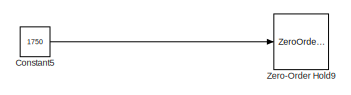
[diagram: root canvas - part 1/6, top left region]
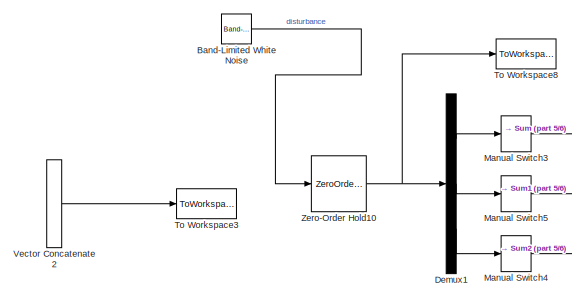
[diagram: root canvas - part 2/6, middle left region]
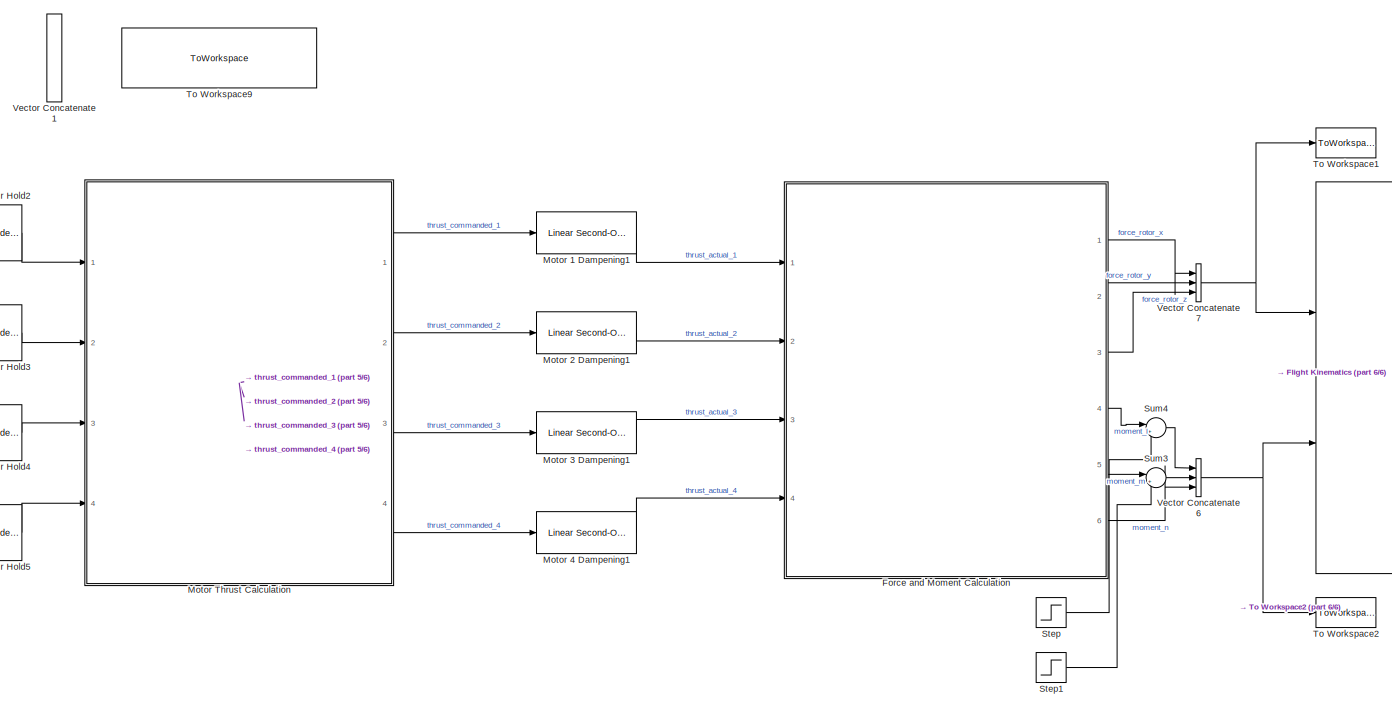
[diagram: root canvas - part 3/6, central region]
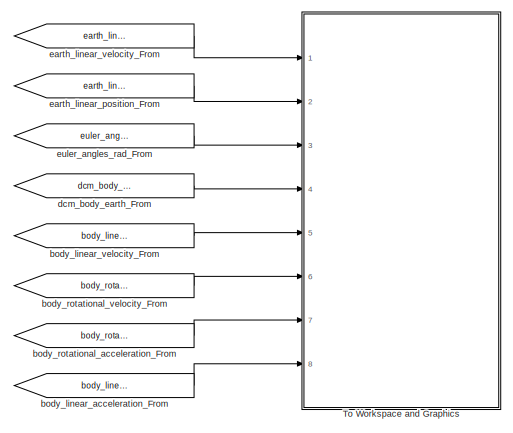
[diagram: root canvas - part 4/6, bottom right region]
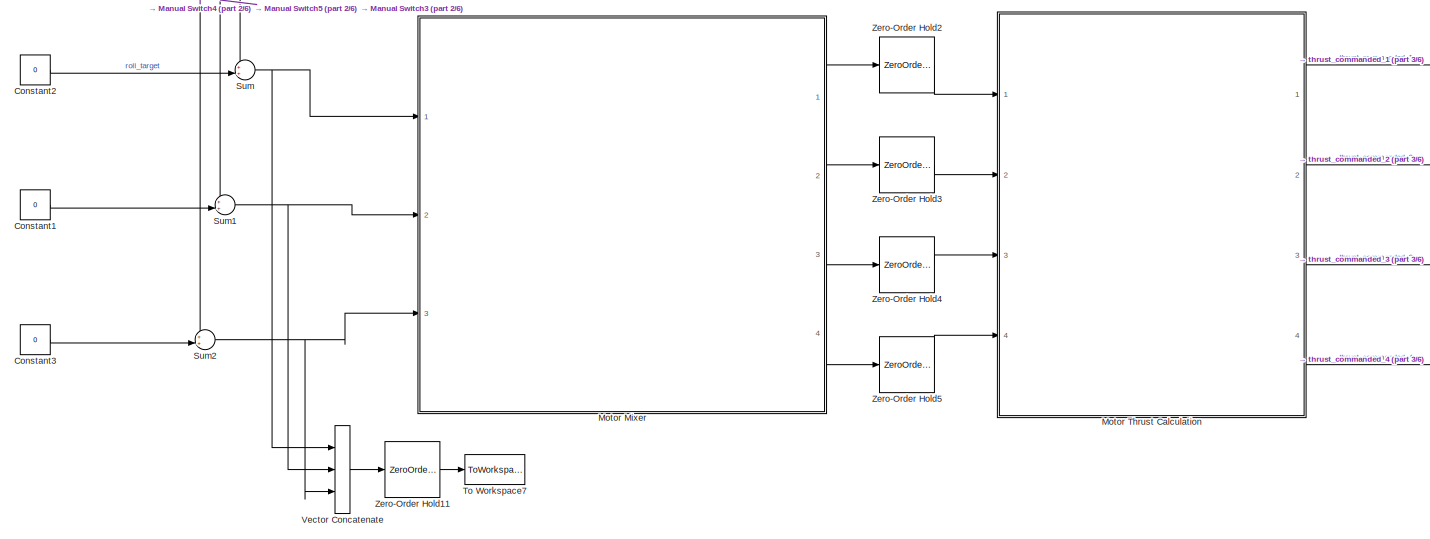
[diagram: root canvas - part 5/6, bottom center region]
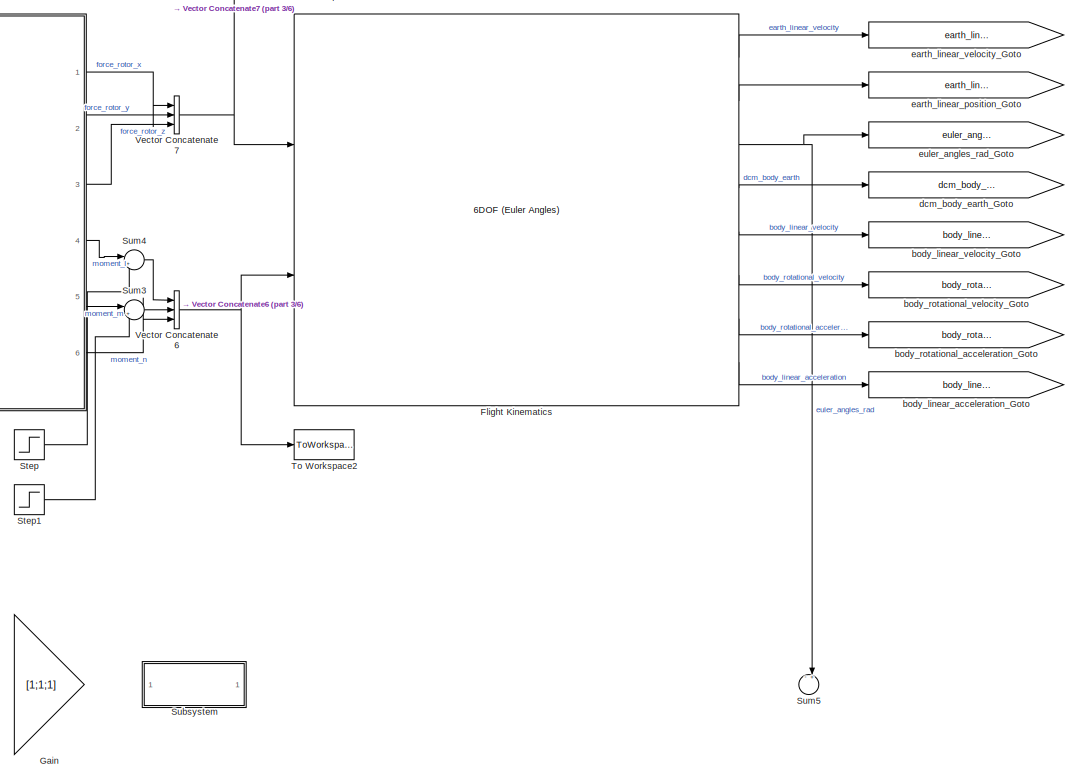
[diagram: root canvas - part 6/6, bottom right region]
MODEL slx_2ea5f88f0110
KIND model
CONFIG AbsTol = auto
CONFIG FixedStep = Ts
CONFIG MaxStep = auto
CONFIG MinStep = auto
CONFIG RelTol = 1e-3
CONFIG SampleTimeConstraint = Unconstrained
CONFIG Solver = VariableStepAuto
CONFIG SolverMode = Auto
CONFIG SolverName = VariableStepAuto
CONFIG StartTime = 0.0
CONFIG StopTime = 20
WORKSPACE source: MAT-file member
WORKSPACE MCOS: class17 (value not decoded)
BLOCK [Reference] Band-Limited White Noise  REF=simulink/Sources/Band-Limited
White Noise
  Ports = [0, 1]
  SourceBlock = simulink/Sources/Band-Limited\nWhite Noise
  SourceType = Band-Limited White Noise.
BLOCK [Constant] Constant1
  SampleTime = Ts
  Value = 0
BLOCK [Constant] Constant2
  SampleTime = Ts
  Value = 0
BLOCK [Constant] Constant3
  SampleTime = Ts
  Value = 0
BLOCK [Constant] Constant5
  SampleTime = Ts
  Value = 1750
BLOCK [Demux] Demux1
  DisplayOption = bar
  Outputs = 3
  Ports = [1, 3]
BLOCK [Reference] Flight Kinematics  REF=aerolib6dof2/6DOF (Euler Angles)
  Ports = [2, 8]
  SourceBlock = aerolib6dof2/6DOF (Euler Angles)
  SourceType = 6DOF EoM (Body Axis)
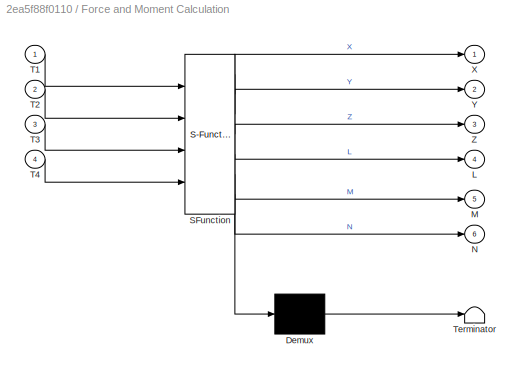
BLOCK [SubSystem] Force and Moment Calculation
  ErrorFcn = Stateflow.Translate.translate
  PermitHierarchicalResolution = ExplicitOnly
  Ports = [4, 6]
  RequestExecContextInheritance = off
  SFBlockType = MATLAB Function
  TreatAsAtomicUnit = on
  Variant = off
BLOCK [Demux] Force and Moment Calculation/ Demux 
  Outputs = 1
  Ports = [1, 1]
BLOCK [S-Function] Force and Moment Calculation/ SFunction 
  EnableBusSupport = on
  FunctionName = sf_sfun
  PortCounts = [4 7]
  Ports = [4, 7]
  SFunctionDeploymentMode = off
  Tag = Stateflow S-Function DOBC_plant 6
BLOCK [Terminator] Force and Moment Calculation/ Terminator 
BLOCK [Outport] Force and Moment Calculation/L
  IconDisplay = Port number
  Port = 4
BLOCK [Outport] Force and Moment Calculation/M
  IconDisplay = Port number
  Port = 5
BLOCK [Outport] Force and Moment Calculation/N
  IconDisplay = Port number
  Port = 6
BLOCK [Inport] Force and Moment Calculation/T1
  IconDisplay = Port number
BLOCK [Inport] Force and Moment Calculation/T2
  IconDisplay = Port number
  Port = 2
BLOCK [Inport] Force and Moment Calculation/T3
  IconDisplay = Port number
  Port = 3
BLOCK [Inport] Force and Moment Calculation/T4
  IconDisplay = Port number
  Port = 4
BLOCK [Outport] Force and Moment Calculation/X
  IconDisplay = Port number
BLOCK [Outport] Force and Moment Calculation/Y
  IconDisplay = Port number
  Port = 2
BLOCK [Outport] Force and Moment Calculation/Z
  IconDisplay = Port number
  Port = 3
BLOCK [Gain] Gain
  Gain = [1;1;1]
  OutDataTypeStr = Inherit: Inherit via internal rule
  ParamDataTypeStr = Inherit: Inherit via internal rule
  SaturateOnIntegerOverflow = off
BLOCK [ManualSwitch] Manual Switch3
  CurrentSetting = 0
BLOCK [ManualSwitch] Manual Switch4
  CurrentSetting = 0
BLOCK [ManualSwitch] Manual Switch5
  CurrentSetting = 0
BLOCK [Reference] Motor 1 Dampening1  REF=aerolibactuator/Linear Second-Order Actuator
  Ports = [1, 1]
  SourceBlock = aerolibactuator/Linear Second-Order Actuator
  SourceType = LinearSecondOrderActuator
BLOCK [Reference] Motor 2 Dampening1  REF=aerolibactuator/Linear Second-Order Actuator
  Ports = [1, 1]
  SourceBlock = aerolibactuator/Linear Second-Order Actuator
  SourceType = LinearSecondOrderActuator
BLOCK [Reference] Motor 3 Dampening1  REF=aerolibactuator/Linear Second-Order Actuator
  Ports = [1, 1]
  SourceBlock = aerolibactuator/Linear Second-Order Actuator
  SourceType = LinearSecondOrderActuator
BLOCK [Reference] Motor 4 Dampening1  REF=aerolibactuator/Linear Second-Order Actuator
  Ports = [1, 1]
  SourceBlock = aerolibactuator/Linear Second-Order Actuator
  SourceType = LinearSecondOrderActuator
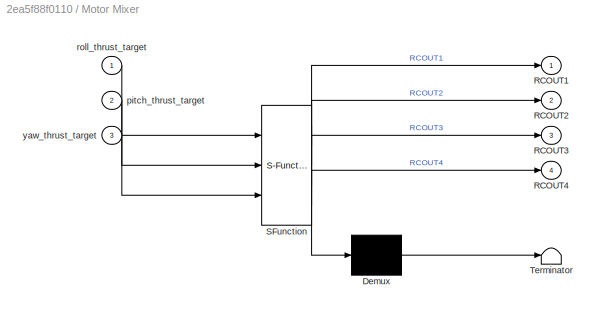
BLOCK [SubSystem] Motor Mixer
  ErrorFcn = Stateflow.Translate.translate
  PermitHierarchicalResolution = ExplicitOnly
  Ports = [3, 4]
  RequestExecContextInheritance = off
  SFBlockType = MATLAB Function
  TreatAsAtomicUnit = on
  Variant = off
BLOCK [Demux] Motor Mixer/ Demux 
  Outputs = 1
  Ports = [1, 1]
BLOCK [S-Function] Motor Mixer/ SFunction 
  EnableBusSupport = on
  FunctionName = sf_sfun
  PortCounts = [3 5]
  Ports = [3, 5]
  SFunctionDeploymentMode = off
  Tag = Stateflow S-Function DOBC_plant 5
BLOCK [Terminator] Motor Mixer/ Terminator 
BLOCK [Outport] Motor Mixer/RCOUT1
  IconDisplay = Port number
BLOCK [Outport] Motor Mixer/RCOUT2
  IconDisplay = Port number
  Port = 2
BLOCK [Outport] Motor Mixer/RCOUT3
  IconDisplay = Port number
  Port = 3
BLOCK [Outport] Motor Mixer/RCOUT4
  IconDisplay = Port number
  Port = 4
BLOCK [Inport] Motor Mixer/pitch_thrust_target
  IconDisplay = Port number
  Port = 2
BLOCK [Inport] Motor Mixer/roll_thrust_target
  IconDisplay = Port number
BLOCK [Inport] Motor Mixer/yaw_thrust_target
  IconDisplay = Port number
  Port = 3
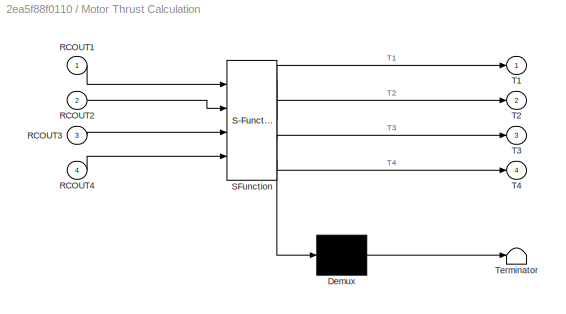
BLOCK [SubSystem] Motor Thrust Calculation 
  ErrorFcn = Stateflow.Translate.translate
  PermitHierarchicalResolution = ExplicitOnly
  Ports = [4, 4]
  RequestExecContextInheritance = off
  SFBlockType = MATLAB Function
  TreatAsAtomicUnit = on
  Variant = off
BLOCK [Demux] Motor Thrust Calculation / Demux 
  Outputs = 1
  Ports = [1, 1]
BLOCK [S-Function] Motor Thrust Calculation / SFunction 
  EnableBusSupport = on
  FunctionName = sf_sfun
  PortCounts = [4 5]
  Ports = [4, 5]
  SFunctionDeploymentMode = off
  Tag = Stateflow S-Function DOBC_plant 8
BLOCK [Terminator] Motor Thrust Calculation / Terminator 
BLOCK [Inport] Motor Thrust Calculation /RCOUT1
  IconDisplay = Port number
BLOCK [Inport] Motor Thrust Calculation /RCOUT2
  IconDisplay = Port number
  Port = 2
BLOCK [Inport] Motor Thrust Calculation /RCOUT3
  IconDisplay = Port number
  Port = 3
BLOCK [Inport] Motor Thrust Calculation /RCOUT4
  IconDisplay = Port number
  Port = 4
BLOCK [Outport] Motor Thrust Calculation /T1
  IconDisplay = Port number
BLOCK [Outport] Motor Thrust Calculation /T2
  IconDisplay = Port number
  Port = 2
BLOCK [Outport] Motor Thrust Calculation /T3
  IconDisplay = Port number
  Port = 3
BLOCK [Outport] Motor Thrust Calculation /T4
  IconDisplay = Port number
  Port = 4
BLOCK [Step] Step
  After = -0.0035
  SampleTime = 0
  Time = 5
BLOCK [Step] Step1
  After = 0.0059
  SampleTime = 0
  Time = 5
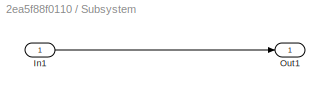
BLOCK [SubSystem] Subsystem
  Ports = [1, 1]
  RequestExecContextInheritance = off
  Variant = off
BLOCK [Inport] Subsystem/In1
  IconDisplay = Port number
BLOCK [Outport] Subsystem/Out1
  IconDisplay = Port number
BLOCK [Sum] Sum
  IconShape = round
  InputSameDT = off
  Inputs = ++|
  OutDataTypeStr = Inherit: Inherit via internal rule
  Ports = [2, 1]
  SaturateOnIntegerOverflow = off
BLOCK [Sum] Sum1
  IconShape = round
  InputSameDT = off
  Inputs = ++|
  OutDataTypeStr = Inherit: Inherit via internal rule
  Ports = [2, 1]
  SaturateOnIntegerOverflow = off
BLOCK [Sum] Sum2
  IconShape = round
  InputSameDT = off
  Inputs = ++|
  OutDataTypeStr = Inherit: Inherit via internal rule
  Ports = [2, 1]
  SaturateOnIntegerOverflow = off
BLOCK [Sum] Sum3
  IconShape = round
  InputSameDT = off
  Inputs = |++
  OutDataTypeStr = Inherit: Inherit via internal rule
  Ports = [2, 1]
  SaturateOnIntegerOverflow = off
BLOCK [Sum] Sum4
  IconShape = round
  InputSameDT = off
  Inputs = |++
  OutDataTypeStr = Inherit: Inherit via internal rule
  Ports = [2, 1]
  SaturateOnIntegerOverflow = off
BLOCK [Sum] Sum5
  IconShape = round
  InputSameDT = off
  Inputs = -+|
  OutDataTypeStr = Inherit: Inherit via internal rule
  Ports = [2, 1]
  SaturateOnIntegerOverflow = off
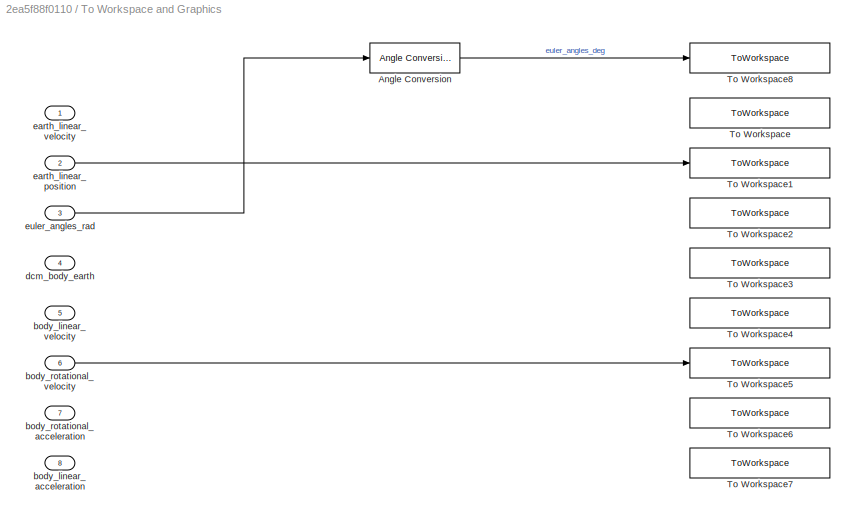
BLOCK [SubSystem] To Workspace and Graphics
  Ports = [8]
  RequestExecContextInheritance = off
  Variant = off
BLOCK [Reference] To Workspace and Graphics/Angle Conversion  REF=aerolibconvert2/Angle Conversion
  Ports = [1, 1]
  SourceBlock = aerolibconvert2/Angle Conversion
  SourceType = Angle Conversion
BLOCK [ToWorkspace] To Workspace and Graphics/To Workspace
  FixptAsFi = on
  MaxDataPoints = inf
  Ports = [1]
  SampleTime = -1
  Save2DSignal = 3-D array (concatenate along third dimension)
  VariableName = earth_linear_velocity
BLOCK [ToWorkspace] To Workspace and Graphics/To Workspace1
  FixptAsFi = on
  MaxDataPoints = inf
  Ports = [1]
  SampleTime = -1
  Save2DSignal = 3-D array (concatenate along third dimension)
  VariableName = earth_linear_position
BLOCK [ToWorkspace] To Workspace and Graphics/To Workspace2
  FixptAsFi = on
  MaxDataPoints = inf
  Ports = [1]
  SampleTime = -1
  Save2DSignal = 3-D array (concatenate along third dimension)
  VariableName = euler_angles_rad
BLOCK [ToWorkspace] To Workspace and Graphics/To Workspace3
  FixptAsFi = on
  MaxDataPoints = inf
  Ports = [1]
  SampleTime = -1
  Save2DSignal = 3-D array (concatenate along third dimension)
  VariableName = dcm_body_earth
BLOCK [ToWorkspace] To Workspace and Graphics/To Workspace4
  FixptAsFi = on
  MaxDataPoints = inf
  Ports = [1]
  SampleTime = -1
  Save2DSignal = 3-D array (concatenate along third dimension)
  VariableName = body_linear_velocity
BLOCK [ToWorkspace] To Workspace and Graphics/To Workspace5
  FixptAsFi = on
  MaxDataPoints = inf
  Ports = [1]
  SampleTime = -1
  Save2DSignal = 3-D array (concatenate along third dimension)
  VariableName = body_rotational_velocity
BLOCK [ToWorkspace] To Workspace and Graphics/To Workspace6
  FixptAsFi = on
  MaxDataPoints = inf
  Ports = [1]
  SampleTime = -1
  Save2DSignal = 3-D array (concatenate along third dimension)
  VariableName = body_rotational_acceleration
BLOCK [ToWorkspace] To Workspace and Graphics/To Workspace7
  FixptAsFi = on
  MaxDataPoints = inf
  Ports = [1]
  SampleTime = -1
  Save2DSignal = 3-D array (concatenate along third dimension)
  VariableName = body_linear_acceleration
BLOCK [ToWorkspace] To Workspace and Graphics/To Workspace8
  FixptAsFi = on
  MaxDataPoints = inf
  Ports = [1]
  SampleTime = -1
  Save2DSignal = 3-D array (concatenate along third dimension)
  VariableName = euler_angles_deg
BLOCK [Inport] To Workspace and Graphics/body_linear_acceleration
  IconDisplay = Port number
  Port = 8
BLOCK [Inport] To Workspace and Graphics/body_linear_velocity
  IconDisplay = Port number
  Port = 5
BLOCK [Inport] To Workspace and Graphics/body_rotational_acceleration
  IconDisplay = Port number
  Port = 7
BLOCK [Inport] To Workspace and Graphics/body_rotational_velocity
  IconDisplay = Port number
  Port = 6
BLOCK [Inport] To Workspace and Graphics/dcm_body_earth
  IconDisplay = Port number
  Port = 4
BLOCK [Inport] To Workspace and Graphics/earth_linear_position
  IconDisplay = Port number
  Port = 2
BLOCK [Inport] To Workspace and Graphics/earth_linear_velocity
  IconDisplay = Port number
BLOCK [Inport] To Workspace and Graphics/euler_angles_rad
  IconDisplay = Port number
  Port = 3
BLOCK [ToWorkspace] To Workspace1
  FixptAsFi = on
  MaxDataPoints = inf
  Ports = [1]
  SampleTime = -1
  Save2DSignal = 3-D array (concatenate along third dimension)
  VariableName = force
BLOCK [ToWorkspace] To Workspace2
  FixptAsFi = on
  MaxDataPoints = inf
  Ports = [1]
  SampleTime = -1
  Save2DSignal = 3-D array (concatenate along third dimension)
  VariableName = moment
BLOCK [ToWorkspace] To Workspace3
  FixptAsFi = on
  MaxDataPoints = inf
  Ports = [1]
  SampleTime = -1
  Save2DSignal = 3-D array (concatenate along third dimension)
  VariableName = rate_target
BLOCK [ToWorkspace] To Workspace7
  FixptAsFi = on
  MaxDataPoints = inf
  Ports = [1]
  SampleTime = -1
  Save2DSignal = 3-D array (concatenate along third dimension)
  VariableName = u
BLOCK [ToWorkspace] To Workspace8
  FixptAsFi = on
  MaxDataPoints = inf
  Ports = [1]
  SampleTime = -1
  Save2DSignal = 3-D array (concatenate along third dimension)
  VariableName = d
BLOCK [ToWorkspace] To Workspace9
  FixptAsFi = on
  MaxDataPoints = inf
  Ports = [1]
  SampleTime = -1
  Save2DSignal = 3-D array (concatenate along third dimension)
  VariableName = RCOUT_limit_check
BLOCK [Concatenate] Vector Concatenate
  NumInputs = 3
  Ports = [3, 1]
BLOCK [Concatenate] Vector Concatenate1
  NumInputs = 4
  Ports = [4, 1]
BLOCK [Concatenate] Vector Concatenate2
  NumInputs = 3
  Ports = [3, 1]
BLOCK [Concatenate] Vector Concatenate6
  NumInputs = 3
  Ports = [3, 1]
BLOCK [Concatenate] Vector Concatenate7
  NumInputs = 3
  Ports = [3, 1]
BLOCK [ZeroOrderHold] Zero-Order Hold10
  SampleTime = dtzoh
BLOCK [ZeroOrderHold] Zero-Order Hold11
  SampleTime = dtzoh
BLOCK [ZeroOrderHold] Zero-Order Hold2
  SampleTime = dtzoh
BLOCK [ZeroOrderHold] Zero-Order Hold3
  SampleTime = dtzoh
BLOCK [ZeroOrderHold] Zero-Order Hold4
  SampleTime = dtzoh
BLOCK [ZeroOrderHold] Zero-Order Hold5
  SampleTime = dtzoh
BLOCK [ZeroOrderHold] Zero-Order Hold9
  SampleTime = dtzoh
BLOCK [From] body_linear_acceleration_From
  GotoTag = body_linear_acceleration
  TagVisibility = global
BLOCK [Goto] body_linear_acceleration_Goto
  GotoTag = body_linear_acceleration
  TagVisibility = global
BLOCK [From] body_linear_velocity_From
  GotoTag = body_linear_velocity
  TagVisibility = global
BLOCK [Goto] body_linear_velocity_Goto
  GotoTag = body_linear_velocity
  TagVisibility = global
BLOCK [From] body_rotational_acceleration_From
  GotoTag = body_rotational_acceleration
  TagVisibility = global
BLOCK [Goto] body_rotational_acceleration_Goto
  GotoTag = body_rotational_acceleration
  TagVisibility = global
BLOCK [From] body_rotational_velocity_From
  GotoTag = body_rotational_velocity
  TagVisibility = global
BLOCK [Goto] body_rotational_velocity_Goto
  GotoTag = body_rotational_velocity
  TagVisibility = global
BLOCK [From] dcm_body_earth_From
  GotoTag = dcm_body_earth
  TagVisibility = global
BLOCK [Goto] dcm_body_earth_Goto
  GotoTag = dcm_body_earth
  TagVisibility = global
BLOCK [From] earth_linear_position_From
  GotoTag = earth_linear_position
  TagVisibility = global
BLOCK [Goto] earth_linear_position_Goto
  GotoTag = earth_linear_position
  TagVisibility = global
BLOCK [From] earth_linear_velocity_From
  GotoTag = earth_linear_velocity
  TagVisibility = global
BLOCK [Goto] earth_linear_velocity_Goto
  GotoTag = earth_linear_velocity
  TagVisibility = global
BLOCK [From] euler_angles_rad_From
  GotoTag = euler_angles_rad
  TagVisibility = global
BLOCK [Goto] euler_angles_rad_Goto
  GotoTag = euler_angles_rad
  TagVisibility = global
LINE Band-Limited White Noise:1 -> Zero-Order Hold10:1
LINE Constant1:1 -> Sum1:2
LINE Constant2:1 -> Sum:2
LINE Constant3:1 -> Sum2:2
LINE Constant5:1 -> Zero-Order Hold9:1
LINE Demux1:1 -> Manual Switch3:1
LINE Demux1:2 -> Manual Switch5:1
LINE Demux1:3 -> Manual Switch4:1
LINE Flight Kinematics:1 -> earth_linear_velocity_Goto:1
LINE Flight Kinematics:2 -> earth_linear_position_Goto:1
NET Flight Kinematics:3 -> Sum5:2, euler_angles_rad_Goto:1
LINE Flight Kinematics:4 -> dcm_body_earth_Goto:1
LINE Flight Kinematics:5 -> body_linear_velocity_Goto:1
LINE Flight Kinematics:6 -> body_rotational_velocity_Goto:1
LINE Flight Kinematics:7 -> body_rotational_acceleration_Goto:1
LINE Flight Kinematics:8 -> body_linear_acceleration_Goto:1
LINE Force and Moment Calculation:1 -> Vector Concatenate7:1
LINE Force and Moment Calculation:2 -> Vector Concatenate7:2
LINE Force and Moment Calculation:3 -> Vector Concatenate7:3
LINE Force and Moment Calculation:4 -> Sum4:1
LINE Force and Moment Calculation:5 -> Sum3:1
LINE Force and Moment Calculation:6 -> Vector Concatenate6:3
LINE Manual Switch3:1 -> Sum:1
LINE Manual Switch4:1 -> Sum2:1
LINE Manual Switch5:1 -> Sum1:1
LINE Motor 1 Dampening1:1 -> Force and Moment Calculation:1
LINE Motor 2 Dampening1:1 -> Force and Moment Calculation:2
LINE Motor 3 Dampening1:1 -> Force and Moment Calculation:3
LINE Motor 4 Dampening1:1 -> Force and Moment Calculation:4
LINE Motor Mixer:1 -> Zero-Order Hold2:1
LINE Motor Mixer:2 -> Zero-Order Hold3:1
LINE Motor Mixer:3 -> Zero-Order Hold4:1
LINE Motor Mixer:4 -> Zero-Order Hold5:1
LINE Motor Thrust Calculation :1 -> Motor 1 Dampening1:1
LINE Motor Thrust Calculation :2 -> Motor 2 Dampening1:1
LINE Motor Thrust Calculation :3 -> Motor 3 Dampening1:1
LINE Motor Thrust Calculation :4 -> Motor 4 Dampening1:1
LINE Step1:1 -> Sum3:2
LINE Step:1 -> Sum4:2
LINE Subsystem/In1:1 -> Subsystem/Out1:1
NET Sum1:1 -> Motor Mixer:2, Vector Concatenate:2
NET Sum2:1 -> Motor Mixer:3, Vector Concatenate:3
LINE Sum3:1 -> Vector Concatenate6:2
LINE Sum4:1 -> Vector Concatenate6:1
NET Sum:1 -> Motor Mixer:1, Vector Concatenate:1
LINE To Workspace and Graphics/Angle Conversion:1 -> To Workspace and Graphics/To Workspace8:1
LINE To Workspace and Graphics/body_rotational_velocity:1 -> To Workspace and Graphics/To Workspace5:1
LINE To Workspace and Graphics/earth_linear_position:1 -> To Workspace and Graphics/To Workspace1:1
LINE To Workspace and Graphics/euler_angles_rad:1 -> To Workspace and Graphics/Angle Conversion:1
LINE Vector Concatenate2:1 -> To Workspace3:1
NET Vector Concatenate6:1 -> Flight Kinematics:2, To Workspace2:1
NET Vector Concatenate7:1 -> Flight Kinematics:1, To Workspace1:1
LINE Vector Concatenate:1 -> Zero-Order Hold11:1
NET Zero-Order Hold10:1 -> Demux1:1, To Workspace8:1
LINE Zero-Order Hold11:1 -> To Workspace7:1
LINE Zero-Order Hold2:1 -> Motor Thrust Calculation :1
LINE Zero-Order Hold3:1 -> Motor Thrust Calculation :2
LINE Zero-Order Hold4:1 -> Motor Thrust Calculation :3
LINE Zero-Order Hold5:1 -> Motor Thrust Calculation :4
LINE body_linear_acceleration_From:1 -> To Workspace and Graphics:8
LINE body_linear_velocity_From:1 -> To Workspace and Graphics:5
LINE body_rotational_acceleration_From:1 -> To Workspace and Graphics:7
LINE body_rotational_velocity_From:1 -> To Workspace and Graphics:6
LINE dcm_body_earth_From:1 -> To Workspace and Graphics:4
LINE earth_linear_position_From:1 -> To Workspace and Graphics:2
LINE earth_linear_velocity_From:1 -> To Workspace and Graphics:1
LINE euler_angles_rad_From:1 -> To Workspace and Graphics:3
note: NET lines group one-source signal fan-out (src -> all destinations, sorted); 1:1 wires keep LINE
CHART Motor Mixer states=1 transitions=1
  STATE_LABEL 'eML_blk_kernel()'
  STATE_LABEL 'SCRIPT:\nfunction [RCOUT1, RCOUT2, RCOUT3, RCOUT4 ]  = motor_mixer( roll_thrust_target, pitch_thrust_target, yaw_thrust_target)\n%% Motor Mixer\n\n%\n%   Matlab Implementation of the ArduPilot Motor Mixer\n%   Outputs Motor Commands based on required rate targets\n%\n    global pwm_min pwm_max spin_min spin_max\n    \n    % Update throttle filter\n    update_throttle_filter();\n\n    % Update battery resistanc...<+1451ch>'
CHART Force and Moment Calculation states=1 transitions=1
  STATE_LABEL 'eML_blk_kernel()'
  STATE_LABEL 'SCRIPT:\nfunction [X, Y, Z, L, M, N] = forceMomentCalc(T1, T2, T3, T4)\n%T1 = Motor 1 Thrust                (N)\n%T2 = Motor 2 Thrust                (N)\n%T3 = Motor 3 Thrust                (N)\n%T4 = Motor 4 Thrust                (N)\n%X = Force in x axis                (N)\n%Y = Force in y axis                (N)                \n%Z = Force in z axis                (N)\n%L = Rolling moment around x axis ...<+692ch>'
CHART Motor Thrust Calculation
 states=1 transitions=1
  STATE_LABEL 'eML_blk_kernel()'
  STATE_LABEL 'SCRIPT:\nfunction [T1, T2, T3, T4] = motorOutputs(RCOUT1, RCOUT2, RCOUT3, RCOUT4)\n%   RCOUTx = PWM Value out of the Autopilot                (1000us-2000us)\n%   Tx = Thrust value produced by the motor/rotor pair     (N)\n%\n%   1.Calculate Tmax by adding overhead onto hover throttle\n%   2.Map RCOUT values between 0 and 1\n%   3.Multiply unity RCOUT value by Tmax\n\n% Tmax = 2*(2.2*9.8);                 ...<+2212ch>'
